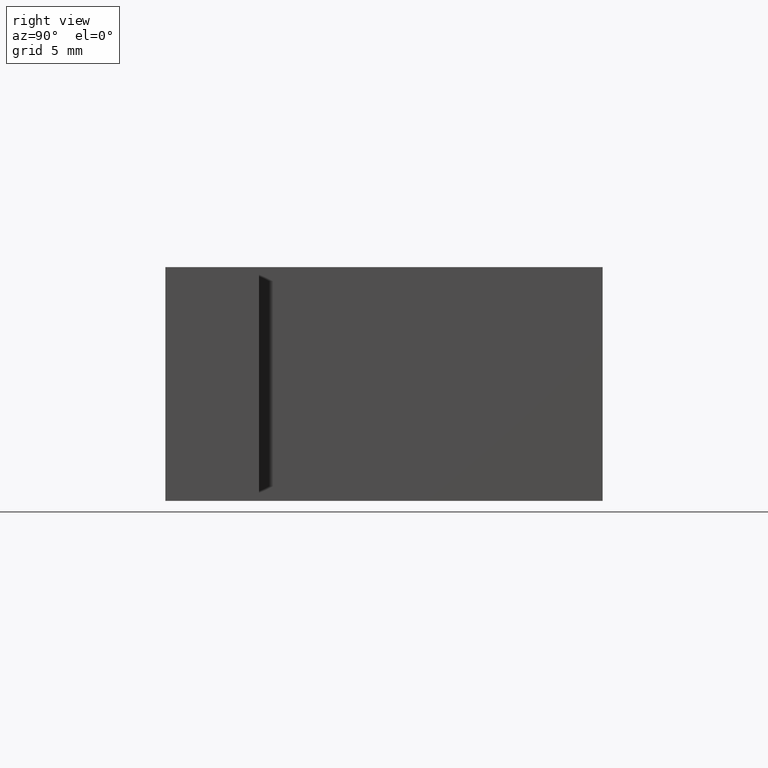
[diagram: clean part render]
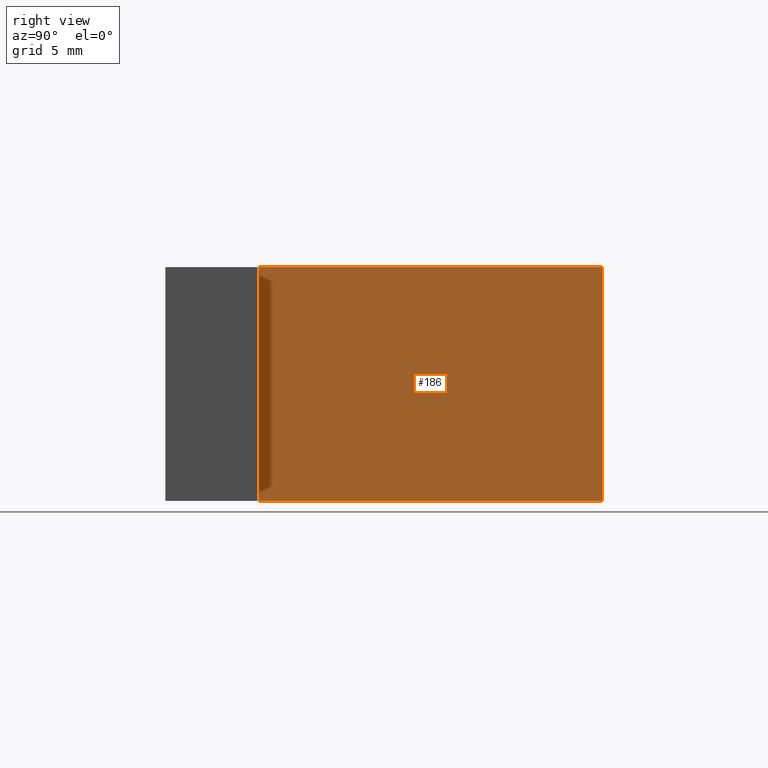
[diagram: same view with one face highlighted and labeled with its STEP entity id]
A machine part, right view. The second image highlights one B-rep face of the part: STEP entity #186.
In plain terms, the highlighted planar face has unit normal (1, 0, 0).
Its self-contained STEP definition (entity closure, byte-faithful):
#20=FACE_OUTER_BOUND('',#30,.T.);
#30=EDGE_LOOP('',(#147,#148,#149,#150));
#41=LINE('',#286,#65);
#51=LINE('',#305,#75);
#52=LINE('',#308,#76);
#53=LINE('',#309,#77);
#65=VECTOR('',#234,10.);
#75=VECTOR('',#252,10.);
#76=VECTOR('',#255,10.);
#77=VECTOR('',#256,10.);
#89=VERTEX_POINT('',#283);
#90=VERTEX_POINT('',#285);
#95=VERTEX_POINT('',#303);
#96=VERTEX_POINT('',#307);
#105=EDGE_CURVE('',#90,#89,#41,.T.);
#115=EDGE_CURVE('',#95,#89,#51,.T.);
#116=EDGE_CURVE('',#95,#96,#52,.T.);
#117=EDGE_CURVE('',#96,#90,#53,.T.);
#147=ORIENTED_EDGE('',*,*,#116,.T.);
#148=ORIENTED_EDGE('',*,*,#117,.T.);
#149=ORIENTED_EDGE('',*,*,#105,.T.);
#150=ORIENTED_EDGE('',*,*,#115,.F.);
#176=PLANE('',#219);
#186=ADVANCED_FACE('',(#20),#176,.T.);
#219=AXIS2_PLACEMENT_3D('',#306,#253,#254);
#234=DIRECTION('',(0.,1.,0.));
#252=DIRECTION('',(0.,0.,-1.));
#253=DIRECTION('center_axis',(1.,0.,0.));
#254=DIRECTION('ref_axis',(0.,0.,-1.));
#255=DIRECTION('',(0.,-1.,0.));
#256=DIRECTION('',(0.,0.,-1.));
#283=CARTESIAN_POINT('',(7.9,18.7,-5.));
#285=CARTESIAN_POINT('',(7.9,4.,-5.));
#286=CARTESIAN_POINT('',(7.9,18.7,-5.));
#303=CARTESIAN_POINT('',(7.9,18.7,5.));
#305=CARTESIAN_POINT('',(7.9,18.7,0.));
#306=CARTESIAN_POINT('Origin',(7.9,18.7,0.));
#307=CARTESIAN_POINT('',(7.9,4.,5.));
#308=CARTESIAN_POINT('',(7.9,18.7,5.));
#309=CARTESIAN_POINT('',(7.9,4.,0.));